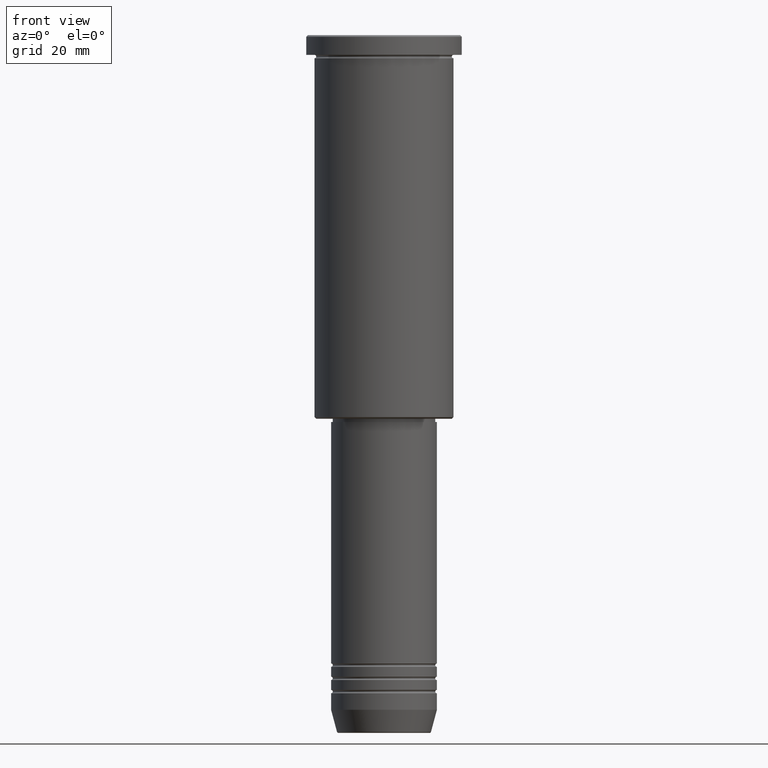
[diagram: clean part render]
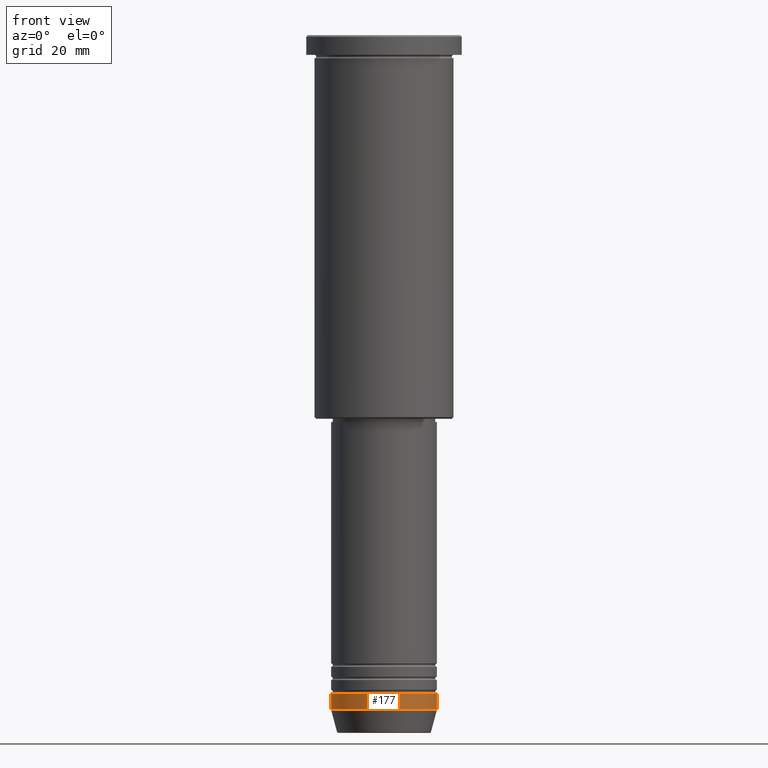
[diagram: same view with one face highlighted and labeled with its STEP entity id]
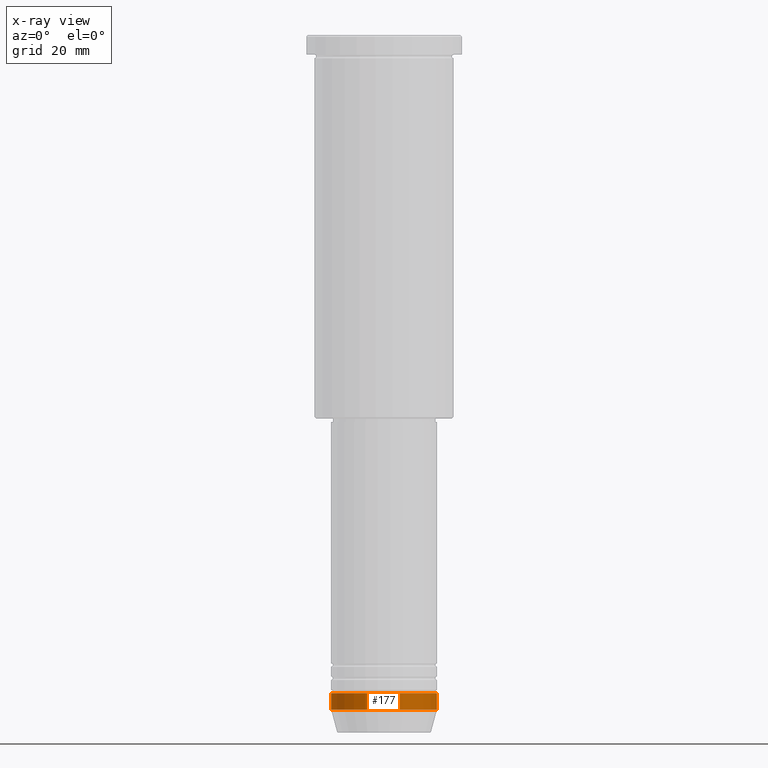
[diagram: x-ray of the same camera — body ghosted, the highlighted face saturated]
A machine part, front view. The second image highlights one B-rep face of the part: STEP entity #177.
The next image is the same camera in x-ray: the body ghosted, the highlighted face saturated — about 0% of this face is hidden behind the body in this view.
In plain terms, the highlighted cylindrical surface (partial cylindrical patch) has radius 16 mm, axis along (-0, -0, 1).
Its self-contained STEP definition (entity closure, byte-faithful):
#1 = CARTESIAN_POINT ( 'NONE',  ( 16.00000000000000000, 0.000000000000000000, -204.0000000000000284 ) ) ;
#4 = DIRECTION ( 'NONE',  ( 1.000000000000000000, 0.000000000000000000, 0.000000000000000000 ) ) ;
#47 = FACE_OUTER_BOUND ( 'NONE', #222, .T. ) ;
#61 = DIRECTION ( 'NONE',  ( -0.000000000000000000, -0.000000000000000000, 1.000000000000000000 ) ) ;
#79 = CARTESIAN_POINT ( 'NONE',  ( 0.000000000000000000, 0.000000000000000000, -204.0000000000000284 ) ) ;
#91 = AXIS2_PLACEMENT_3D ( 'NONE', #724, #1080, #268 ) ;
#125 = EDGE_CURVE ( 'NONE', #789, #964, #967, .T. ) ;
#127 = DIRECTION ( 'NONE',  ( -0.000000000000000000, -0.000000000000000000, 1.000000000000000000 ) ) ;
#177 = ADVANCED_FACE ( 'NONE', ( #47 ), #221, .T. ) ;
#197 = ORIENTED_EDGE ( 'NONE', *, *, #339, .F. ) ;
#221 = CYLINDRICAL_SURFACE ( 'NONE', #425, 16.00000000000000000 ) ;
#222 = EDGE_LOOP ( 'NONE', ( #667, #275, #869, #197 ) ) ;
#242 = DIRECTION ( 'NONE',  ( 1.000000000000000000, 0.000000000000000000, 0.000000000000000000 ) ) ;
#268 = DIRECTION ( 'NONE',  ( 1.000000000000000000, 0.000000000000000000, 0.000000000000000000 ) ) ;
#275 = ORIENTED_EDGE ( 'NONE', *, *, #1179, .T. ) ;
#293 = CARTESIAN_POINT ( 'NONE',  ( -16.00000000000000000, 1.959434878635765131E-15, 0.000000000000000000 ) ) ;
#339 = EDGE_CURVE ( 'NONE', #1114, #964, #1122, .T. ) ;
#349 = CIRCLE ( 'NONE', #860, 16.00000000000000000 ) ;
#370 = DIRECTION ( 'NONE',  ( -0.000000000000000000, -0.000000000000000000, 1.000000000000000000 ) ) ;
#389 = LINE ( 'NONE', #293, #525 ) ;
#425 = AXIS2_PLACEMENT_3D ( 'NONE', #596, #127, #242 ) ;
#446 = CARTESIAN_POINT ( 'NONE',  ( -16.00000000000000000, 1.959434878635765131E-15, -199.0000000000000284 ) ) ;
#513 = CARTESIAN_POINT ( 'NONE',  ( 16.00000000000000000, 0.000000000000000000, -199.0000000000000284 ) ) ;
#525 = VECTOR ( 'NONE', #370, 1000.000000000000000 ) ;
#596 = CARTESIAN_POINT ( 'NONE',  ( 0.000000000000000000, 0.000000000000000000, 0.000000000000000000 ) ) ;
#667 = ORIENTED_EDGE ( 'NONE', *, *, #913, .F. ) ;
#694 = CARTESIAN_POINT ( 'NONE',  ( -16.00000000000000000, 1.959434878635765131E-15, -204.0000000000000284 ) ) ;
#705 = DIRECTION ( 'NONE',  ( -0.000000000000000000, -0.000000000000000000, 1.000000000000000000 ) ) ;
#724 = CARTESIAN_POINT ( 'NONE',  ( 0.000000000000000000, 0.000000000000000000, -199.0000000000000284 ) ) ;
#789 = VERTEX_POINT ( 'NONE', #1 ) ;
#860 = AXIS2_PLACEMENT_3D ( 'NONE', #79, #705, #4 ) ;
#869 = ORIENTED_EDGE ( 'NONE', *, *, #125, .T. ) ;
#877 = VECTOR ( 'NONE', #61, 1000.000000000000000 ) ;
#885 = CARTESIAN_POINT ( 'NONE',  ( 16.00000000000000000, 0.000000000000000000, 0.000000000000000000 ) ) ;
#913 = EDGE_CURVE ( 'NONE', #1000, #1114, #389, .T. ) ;
#964 = VERTEX_POINT ( 'NONE', #513 ) ;
#967 = LINE ( 'NONE', #885, #877 ) ;
#1000 = VERTEX_POINT ( 'NONE', #694 ) ;
#1080 = DIRECTION ( 'NONE',  ( -0.000000000000000000, -0.000000000000000000, 1.000000000000000000 ) ) ;
#1114 = VERTEX_POINT ( 'NONE', #446 ) ;
#1122 = CIRCLE ( 'NONE', #91, 16.00000000000000000 ) ;
#1179 = EDGE_CURVE ( 'NONE', #1000, #789, #349, .T. ) ;